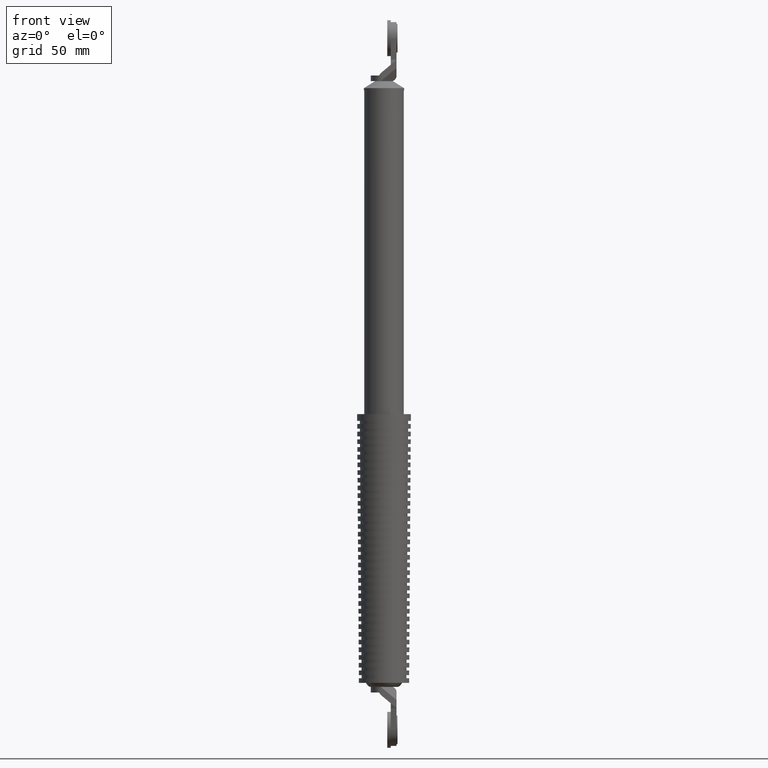
[diagram: clean part render]
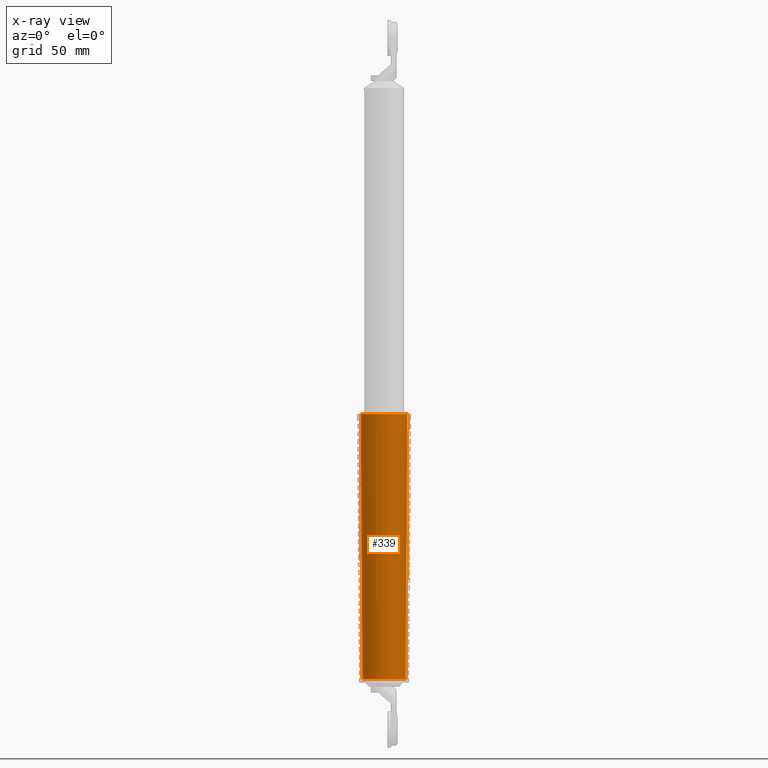
[diagram: x-ray — body ghosted, one internal face saturated and labeled with its STEP entity id]
A machine part, front view, then the same camera in x-ray: the body is ghosted and one INTERNAL B-rep face — a face not visible from any outside direction — is saturated and labeled: STEP entity #339.
In plain terms, the highlighted face is a freeform B-spline surface patch.
Its self-contained STEP definition (entity closure, byte-faithful):
#339=ADVANCED_FACE('',(#1611),#1610,.F.);
#1610=( BOUNDED_SURFACE() B_SPLINE_SURFACE( 2,1,((#4404,#4405),(#4406,#4407),(#4408,#4409),(#4410,#4411),(#4412,#4413)), .UNSPECIFIED.,.F.,.F.,.F.) B_SPLINE_SURFACE_WITH_KNOTS((3,2,3),(2,2),(0.00000000000E+000,5.00000000000E-001,1.00000000000E+000),(0.00000000000E+000,1.00000000000E+000), .UNSPECIFIED. ) GEOMETRIC_REPRESENTATION_ITEM() RATIONAL_B_SPLINE_SURFACE(((1.00000000000E+000,1.00000000000E+000),(7.07106781187E-001,7.07106781187E-001),(1.00000000000E+000,1.00000000000E+000),(7.07106781187E-001,7.07106781187E-001),(1.00000000000E+000,1.00000000000E+000))) REPRESENTATION_ITEM('') SURFACE() );
#1611=FACE_OUTER_BOUND('',#4414,.T.);
#4404=CARTESIAN_POINT('',(-1.20140000000E+001,-2.73742877274E-014,-1.04700015000E+002));
#4405=CARTESIAN_POINT('',(-1.30000000000E+001,-2.76157880762E-014,4.31999850000E+001));
#4406=CARTESIAN_POINT('',(-1.20140000000E+001,-1.20140000000E+001,-1.04700015000E+002));
#4407=CARTESIAN_POINT('',(-1.30000000000E+001,-1.30000000000E+001,4.31999850000E+001));
#4408=CARTESIAN_POINT('',(2.20693599674E-015,-1.20140000000E+001,-1.04700015000E+002));
#4409=CARTESIAN_POINT('',(2.38806125834E-015,-1.30000000000E+001,4.31999850000E+001));
#4410=CARTESIAN_POINT('',(1.20140000000E+001,-1.20140000000E+001,-1.04700015000E+002));
#4411=CARTESIAN_POINT('',(1.30000000000E+001,-1.30000000000E+001,4.31999850000E+001));
#4412=CARTESIAN_POINT('',(1.20140000000E+001,-2.29604157339E-014,-1.04700015000E+002));
#4413=CARTESIAN_POINT('',(1.30000000000E+001,-2.28396655596E-014,4.31999850000E+001));
#4414=EDGE_LOOP('',(#6901,#6902,#6903,#6904));
#6901=ORIENTED_EDGE('',*,*,#7847,.T.);
#6902=ORIENTED_EDGE('',*,*,#8159,.T.);
#6903=ORIENTED_EDGE('',*,*,#7862,.F.);
#6904=ORIENTED_EDGE('',*,*,#8160,.F.);
#7847=EDGE_CURVE('',#8662,#8663,#8664,.T.);
#7862=EDGE_CURVE('',#8761,#8760,#8768,.T.);
#8159=EDGE_CURVE('',#8663,#8760,#10834,.T.);
#8160=EDGE_CURVE('',#8662,#8761,#10840,.T.);
#8662=VERTEX_POINT('',#12948);
#8663=VERTEX_POINT('',#12949);
#8664=CIRCLE('',#12953,1.20140000000E+001);
#8760=VERTEX_POINT('',#13018);
#8761=VERTEX_POINT('',#13019);
#8768=CIRCLE('',#13027,1.30000000000E+001);
#10834=(BOUNDED_CURVE() B_SPLINE_CURVE(1,(#14478,#14479),.UNSPECIFIED.,.F.,.F.) B_SPLINE_CURVE_WITH_KNOTS((2,2),(0.00000000000E+000,1.00000000000E+000),.UNSPECIFIED.) CURVE() GEOMETRIC_REPRESENTATION_ITEM() RATIONAL_B_SPLINE_CURVE((1.00000000000E+000,1.00000000000E+000)) REPRESENTATION_ITEM('') );
#10840=(BOUNDED_CURVE() B_SPLINE_CURVE(1,(#14480,#14481),.UNSPECIFIED.,.F.,.F.) B_SPLINE_CURVE_WITH_KNOTS((2,2),(0.00000000000E+000,1.00000000000E+000),.UNSPECIFIED.) CURVE() GEOMETRIC_REPRESENTATION_ITEM() RATIONAL_B_SPLINE_CURVE((7.50000000000E-001,7.50000000000E-001)) REPRESENTATION_ITEM('') );
#12948=CARTESIAN_POINT('',(1.20140000000E+001,-2.48689957516E-014,-1.04700015000E+002));
#12949=CARTESIAN_POINT('',(-1.20140000000E+001,-2.44317063984E-014,-1.04700015000E+002));
#12950=CARTESIAN_POINT('',(0.00000000000E+000,-2.44317063984E-014,-1.04700015000E+002));
#12951=DIRECTION('',(-0.00000000000E+000,0.00000000000E+000,-1.00000000000E+000));
#12952=DIRECTION('',(-1.00000000000E+000,-1.22460635382E-016,0.00000000000E+000));
#12953=AXIS2_PLACEMENT_3D('',#12950,#12951,#12952);
#13018=CARTESIAN_POINT('',(-1.30000000000E+001,-2.44317063984E-014,4.31999850000E+001));
#13019=CARTESIAN_POINT('',(1.30000000000E+001,-2.48689957516E-014,4.31999850000E+001));
#13024=CARTESIAN_POINT('',(0.00000000000E+000,-2.44317063984E-014,4.31999850000E+001));
#13025=DIRECTION('',(-0.00000000000E+000,0.00000000000E+000,-1.00000000000E+000));
#13026=DIRECTION('',(-1.00000000000E+000,-1.22460635382E-016,0.00000000000E+000));
#13027=AXIS2_PLACEMENT_3D('',#13024,#13025,#13026);
#14478=CARTESIAN_POINT('',(-1.20140000000E+001,-2.73741905454E-014,-1.04700015000E+002));
#14479=CARTESIAN_POINT('',(-1.30000000000E+001,-2.76156829184E-014,4.31999850000E+001));
#14480=CARTESIAN_POINT('',(1.20140000000E+001,-2.07241631263E-014,-1.04700015000E+002));
#14481=CARTESIAN_POINT('',(1.30000000000E+001,-2.07241631263E-014,4.31999850000E+001));